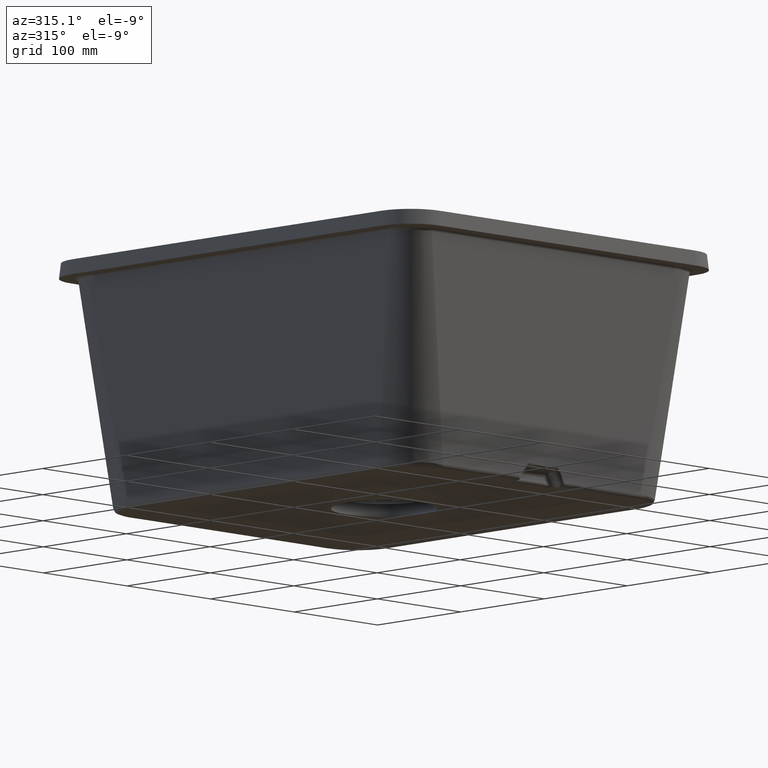
[diagram: clean part render]
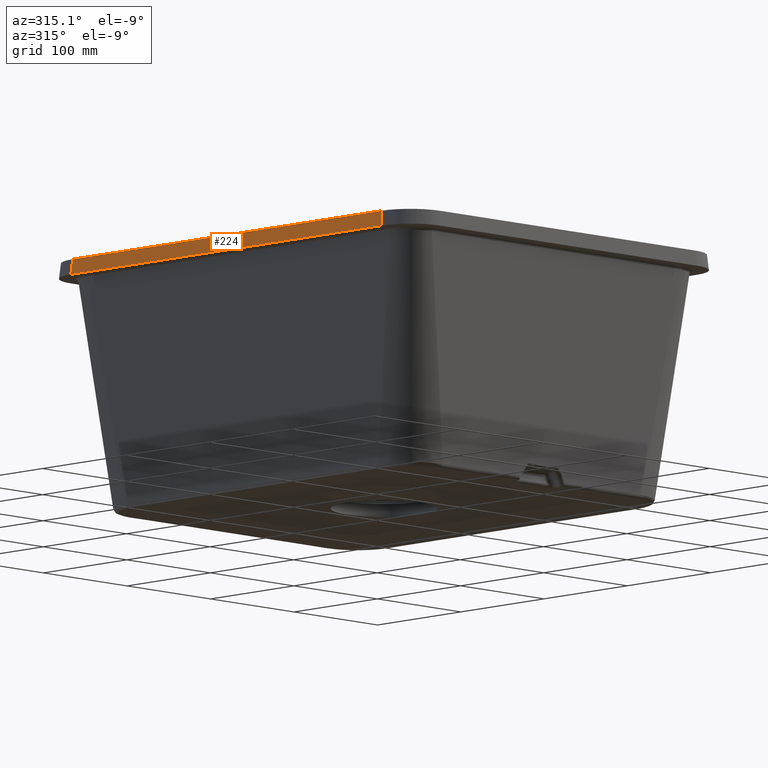
[diagram: same view with one face highlighted and labeled with its STEP entity id]
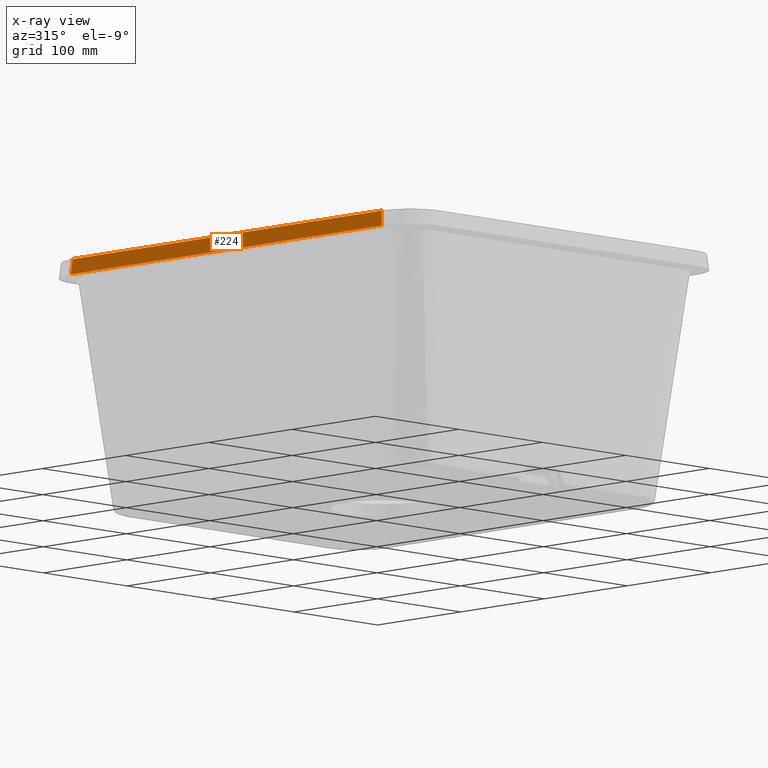
[diagram: x-ray of the same camera — body ghosted, the highlighted face saturated]
A machine part, auxiliary view. The second image highlights one B-rep face of the part: STEP entity #224.
The next image is the same camera in x-ray: the body ghosted, the highlighted face saturated — about 0% of this face is hidden behind the body in this view.
In plain terms, the highlighted planar face has unit normal (0.9962, 0, -0.0872).
Its self-contained STEP definition (entity closure, byte-faithful):
#60=PLANE('',#1395);
#70=LINE('',#3073,#94);
#83=LINE('',#3649,#107);
#84=LINE('',#3653,#108);
#85=LINE('',#3655,#109);
#94=VECTOR('',#1483,1.);
#107=VECTOR('',#1536,1.);
#108=VECTOR('',#1541,1.);
#109=VECTOR('',#1542,1.);
#224=ADVANCED_FACE('',(#349),#60,.F.);
#349=FACE_OUTER_BOUND('',#439,.T.);
#439=EDGE_LOOP('',(#746,#747,#748,#749));
#746=ORIENTED_EDGE('',*,*,#1127,.T.);
#747=ORIENTED_EDGE('',*,*,#1178,.F.);
#748=ORIENTED_EDGE('',*,*,#1179,.F.);
#749=ORIENTED_EDGE('',*,*,#1176,.T.);
#978=VERTEX_POINT('',#3072);
#979=VERTEX_POINT('',#3074);
#1008=VERTEX_POINT('',#3650);
#1009=VERTEX_POINT('',#3654);
#1127=EDGE_CURVE('',#979,#978,#70,.T.);
#1176=EDGE_CURVE('',#1008,#979,#83,.T.);
#1178=EDGE_CURVE('',#1009,#978,#84,.T.);
#1179=EDGE_CURVE('',#1008,#1009,#85,.T.);
#1395=AXIS2_PLACEMENT_3D('',#3656,#1543,#1544);
#1483=DIRECTION('',(-1.26161707343768E-16,1.,0.));
#1536=DIRECTION('',(0.0868265938642475,0.0868265938642475,0.992432509138967));
#1541=DIRECTION('',(0.0868265938642475,-0.0868265938642475,0.992432509138967));
#1542=DIRECTION('',(-1.26161707343768E-16,1.,0.));
#1543=DIRECTION('',(0.996194698091746,1.25681623958064E-16,-0.0871557427476581));
#1544=DIRECTION('',(0.0871557427476581,0.,0.996194698091746));
#3072=CARTESIAN_POINT('',(-187.849954654104,-23.5168597791074,1.0842021724855E-16));
#3073=CARTESIAN_POINT('',(-187.849954654104,11.,0.));
#3074=CARTESIAN_POINT('',(-187.849954654104,-394.483140220893,0.));
#3649=CARTESIAN_POINT('',(-184.445758685167,-391.078944251956,38.9101379737977));
#3650=CARTESIAN_POINT('',(-188.987307279941,-395.62049284673,-13.));
#3653=CARTESIAN_POINT('',(-187.762855942076,-23.6039584911348,0.995542833976173));
#3654=CARTESIAN_POINT('',(-188.987307279941,-22.3795071532704,-13.));
#3655=CARTESIAN_POINT('',(-188.987307279941,11.,-13.));
#3656=CARTESIAN_POINT('',(-187.5,11.,4.));